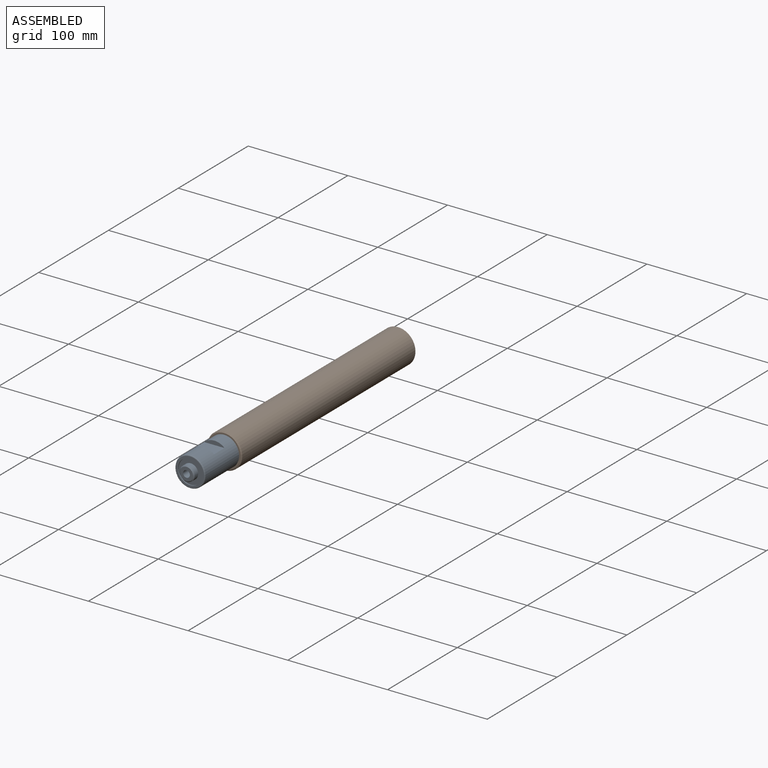
[diagram: assembled view]
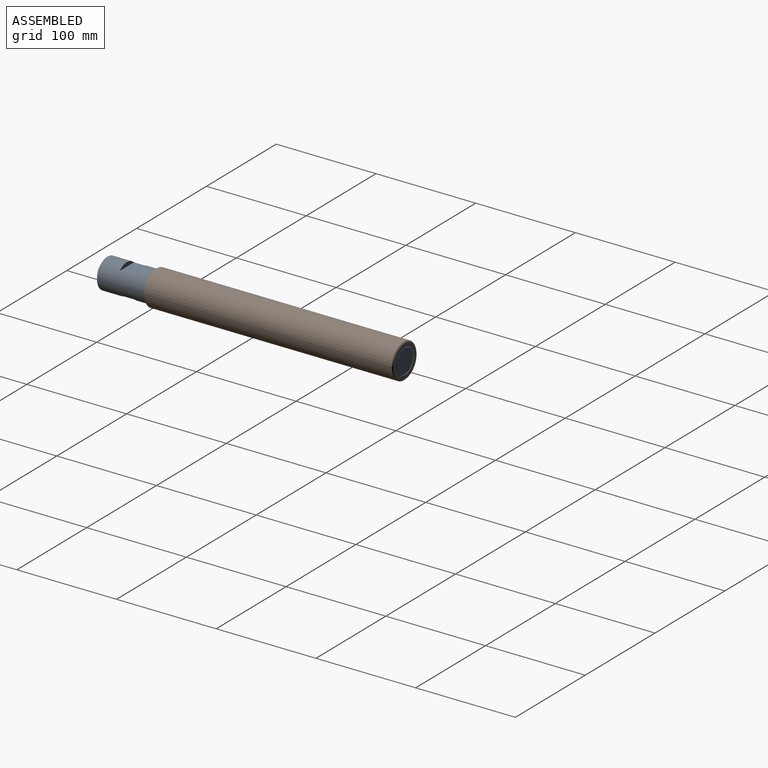
[diagram: assembled view, second angle]
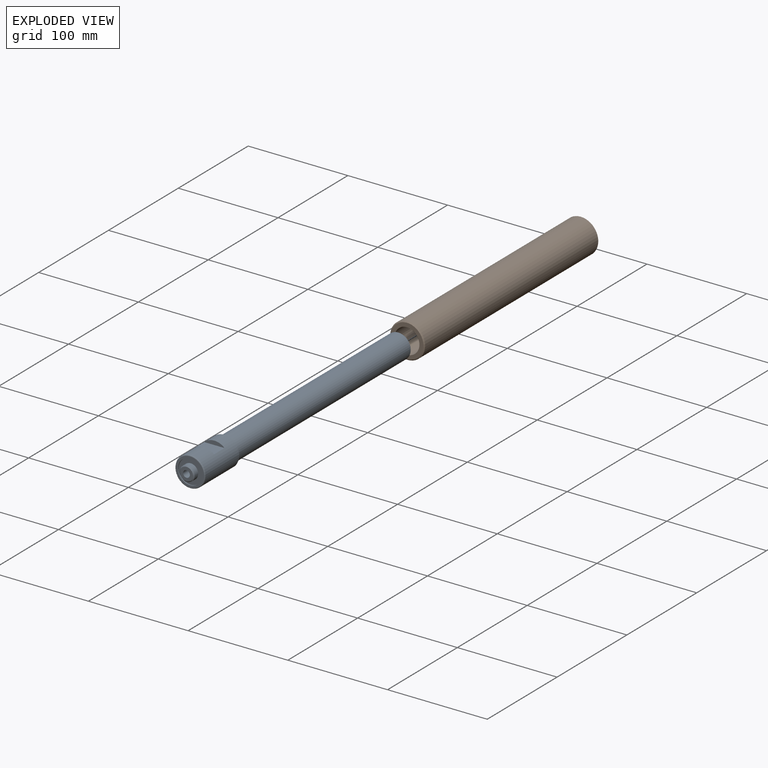
[diagram: exploded view]
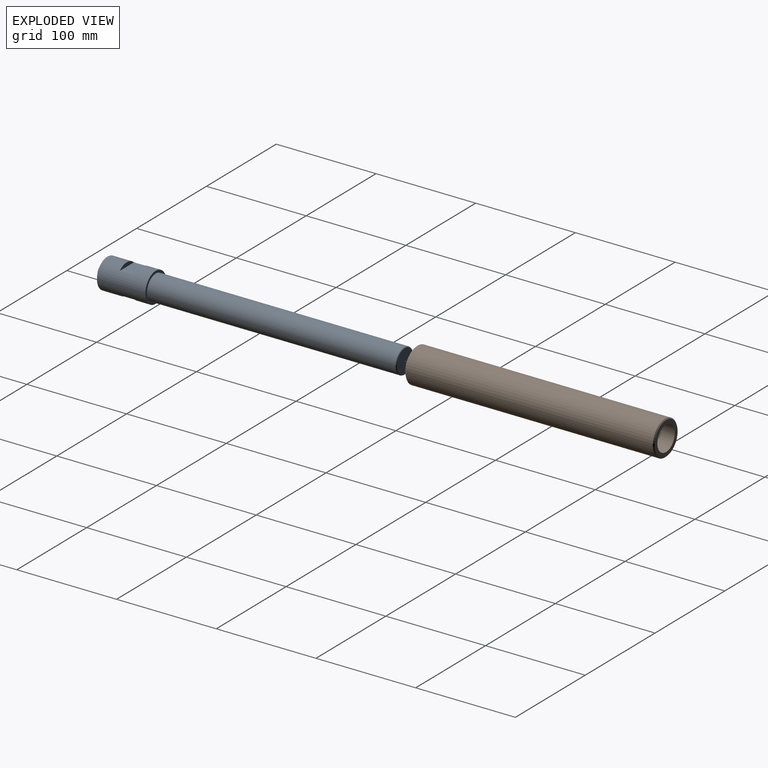
[diagram: exploded view, second angle]
ASSEMBLY  parts=2 mates=2
PART A: 20 faces, bbox 32.5x304x32.5 mm
  f0: cylinder r=15mm len=48mm, axis (0,1,0), area 3851.1mm2, adj f8,f9,f10,f11,f12,f13,f15,f19
  f1: plane 28x28mm, normal (0,-1,0), area 163.4mm2, adj f2,f19
  f2: cylinder r=12mm len=24mm, axis (0,-1,0), area 75.4mm2, adj f1,f3
  f3: plane 24x24mm, normal (0,-1,0), area 275.7mm2, adj f2,f4
  f4: cylinder r=7.5mm len=15mm, axis (0,1,0), area 235.6mm2, adj f3,f17
  f5: plane 13x13mm, normal (0,-1,0), area 96.4mm2, adj f7,f17
  f6: cone r=0mm half-angle=59deg, axis (0,-1,0), area 42.4mm2, adj f7
  f7: cylinder r=3.4mm len=33.75mm, axis (0,-1,0), area 721mm2, adj f5,f6
  f8: plane 20.4x4mm, normal (0,-1,0), area 56mm2, adj f0,f9
  f9: plane 20.4x15mm, normal (0,0,-1), area 305.9mm2, adj f0,f8,f10
  f10: plane 20.4x4mm, normal (0,1,0), area 56mm2, adj f0,f9
  f11: plane 20.4x4mm, normal (0,-1,0), area 56mm2, adj f0,f13
  f12: plane 20.4x4mm, normal (0,1,0), area 56mm2, adj f0,f13
  f13: plane 20.4x15mm, normal (0,0,1), area 305.9mm2, adj f0,f11,f12
  f14: cylinder r=12.5mm len=249mm, axis (0,1,0), area 19556.4mm2, adj f15,f18
  f15: plane 30x30mm, normal (0,1,0), area 216mm2, adj f0,f14
  f16: plane 23x23mm, normal (0,1,0), area 415.5mm2, adj f18
  f17: cone r=6.5mm half-angle=45deg, axis (0,1,0), area 62.2mm2, adj f4,f5
  f18: torus R=11.5mm, axis (0,-1,0), area 119.8mm2, adj f14,f16
  f19: torus R=14mm, axis (0,-1,0), area 144.5mm2, adj f0,f1
PART B: 6 faces, bbox 35x250x35 mm
  f0: cylinder r=12.5mm len=250mm, axis (0,1,0), area 19635mm2, adj f2,f3
  f1: cylinder r=17.5mm len=248mm, axis (0,1,0), area 27269mm2, adj f4,f5
  f2: plane 33x33mm, normal (0,-1,0), area 364.4mm2, adj f0,f5
  f3: plane 33x33mm, normal (0,1,0), area 364.4mm2, adj f0,f4
  f4: cone r=17.5mm half-angle=45deg, axis (0,-1,0), area 151.1mm2, adj f1,f3
  f5: cone r=16.5mm half-angle=45deg, axis (0,1,0), area 151.1mm2, adj f1,f2
PLACE A t=(-83.45,-79.14,-50.94)mm
PLACE B t=(-83.45,-79.14,-50.94)mm
MATE slider B.f1 <-> A.f0  axis (0,1,0) through (-83.45,-204.14,-50.94)mm
MATE revolute B.f0 <-> A.f0  axis (0,1,0) through (-83.45,-329.14,-50.94)mm
